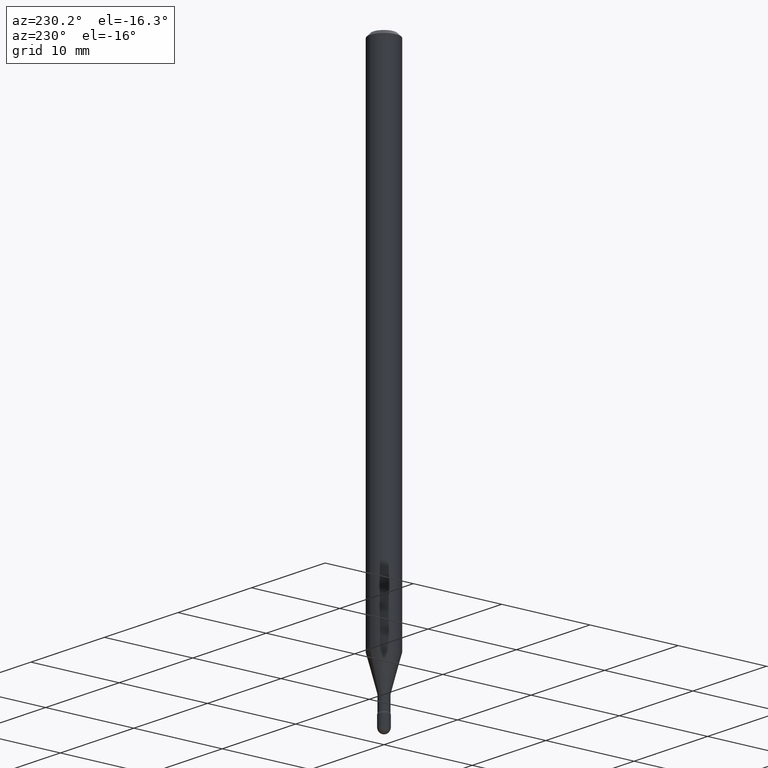
[diagram: clean part render]
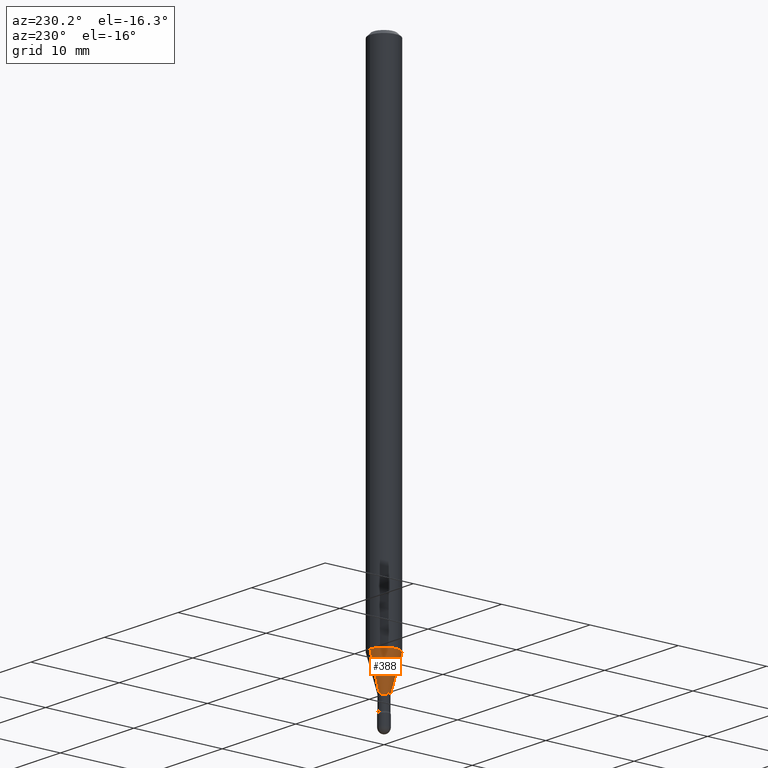
[diagram: same view with one face highlighted and labeled with its STEP entity id]
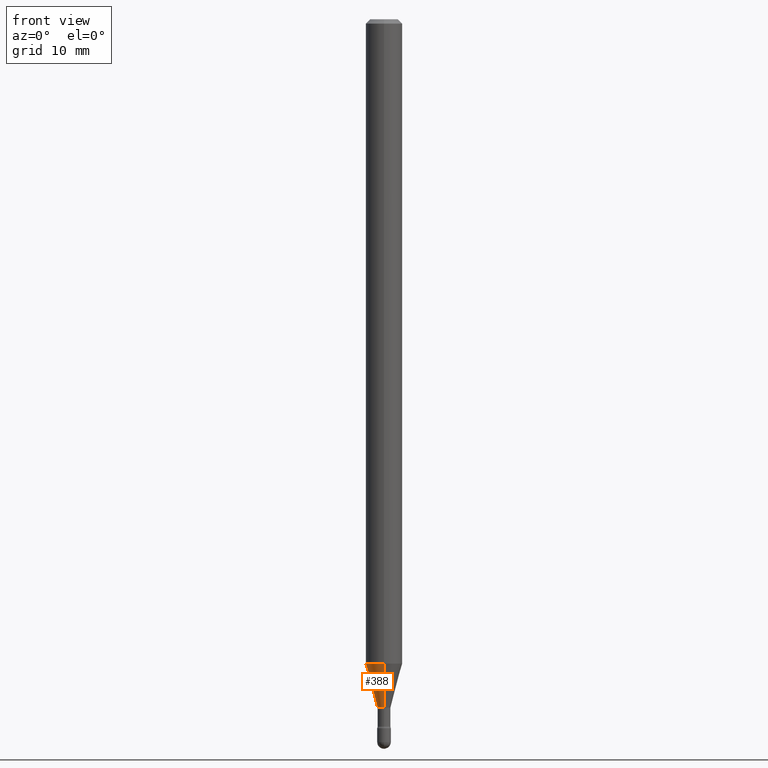
[diagram: same view with one face highlighted and labeled with its STEP entity id]
A machine part, auxiliary view. The second image highlights one B-rep face of the part: STEP entity #388.
A second angle (front view) of the same face is appended — the face is thin or edge-on in the first view.
In plain terms, the highlighted conical surface has half-angle 15 deg.
Its self-contained STEP definition (entity closure, byte-faithful):
#4 = DIRECTION ( 'NONE',  ( -2.445458922763215307E-29, 3.491495492465866441E-15, 1.000000000000000000 ) ) ;
#13 = CARTESIAN_POINT ( 'NONE',  ( 5.400123890116396966E-29, -7.710008148406855528E-15, -2.208225147374217823 ) ) ;
#18 = VECTOR ( 'NONE', #365, 39.37007874015748143 ) ;
#29 = VERTEX_POINT ( 'NONE', #152 ) ;
#57 = LINE ( 'NONE', #96, #18 ) ;
#87 = ORIENTED_EDGE ( 'NONE', *, *, #175, .F. ) ;
#96 = CARTESIAN_POINT ( 'NONE',  ( 1.606616180941393285E-16, 0.02261111260565575043, -2.357092501787273253 ) ) ;
#123 = EDGE_CURVE ( 'NONE', #460, #29, #306, .T. ) ;
#132 = DIRECTION ( 'NONE',  ( -2.445458922763215307E-29, 3.491495492465866441E-15, 1.000000000000000000 ) ) ;
#151 = EDGE_CURVE ( 'NONE', #165, #413, #386, .T. ) ;
#152 = CARTESIAN_POINT ( 'NONE',  ( -1.578925554262553659E-16, -0.02261111260567220949, -2.357092501787273253 ) ) ;
#165 = VERTEX_POINT ( 'NONE', #265 ) ;
#170 = FACE_OUTER_BOUND ( 'NONE', #210, .T. ) ;
#172 = DIRECTION ( 'NONE',  ( -6.982962677686265922E-15, -1.000000000000000000, 0.000000000000000000 ) ) ;
#174 = DIRECTION ( 'NONE',  ( -6.982962677686265922E-15, -1.000000000000000000, 0.000000000000000000 ) ) ;
#175 = EDGE_CURVE ( 'NONE', #460, #165, #57, .T. ) ;
#181 = CARTESIAN_POINT ( 'NONE',  ( -4.364351673553376817E-16, -0.06250000000000772993, -2.208225147374217379 ) ) ;
#193 = AXIS2_PLACEMENT_3D ( 'NONE', #214, #445, #172 ) ;
#210 = EDGE_LOOP ( 'NONE', ( #87, #545, #519, #240 ) ) ;
#213 = CARTESIAN_POINT ( 'NONE',  ( 5.764172890273956731E-29, -8.229777845315356399E-15, -2.357092501787273253 ) ) ;
#214 = CARTESIAN_POINT ( 'NONE',  ( 5.764172890273956731E-29, -8.229777845315356399E-15, -2.357092501787273253 ) ) ;
#229 = AXIS2_PLACEMENT_3D ( 'NONE', #13, #132, #480 ) ;
#240 = ORIENTED_EDGE ( 'NONE', *, *, #151, .F. ) ;
#254 = AXIS2_PLACEMENT_3D ( 'NONE', #213, #4, #174 ) ;
#265 = CARTESIAN_POINT ( 'NONE',  ( 4.440892098501163573E-16, 0.06249999999999226313, -2.208225147374217823 ) ) ;
#296 = VECTOR ( 'NONE', #439, 39.37007874015748854 ) ;
#306 = CIRCLE ( 'NONE', #193, 0.02261111260566397996 ) ;
#332 = EDGE_CURVE ( 'NONE', #29, #413, #341, .T. ) ;
#341 = LINE ( 'NONE', #512, #296 ) ;
#365 = DIRECTION ( 'NONE',  ( 1.839019923739596371E-15, 0.2588190451025244032, 0.9659258262890673130 ) ) ;
#386 = CIRCLE ( 'NONE', #229, 0.06250000000000000000 ) ;
#388 = ADVANCED_FACE ( 'NONE', ( #170 ), #421, .T. ) ;
#413 = VERTEX_POINT ( 'NONE', #181 ) ;
#421 = CONICAL_SURFACE ( 'NONE', #254, 0.02261111260566397996, 0.2617993877991496854 ) ;
#439 = DIRECTION ( 'NONE',  ( -1.807323732225326195E-15, -0.2588190451025176309, 0.9659258262890690894 ) ) ;
#445 = DIRECTION ( 'NONE',  ( -2.445458922763215307E-29, 3.491495492465866441E-15, 1.000000000000000000 ) ) ;
#460 = VERTEX_POINT ( 'NONE', #488 ) ;
#480 = DIRECTION ( 'NONE',  ( -6.982962677686265922E-15, -1.000000000000000000, 4.370956789862821150E-15 ) ) ;
#488 = CARTESIAN_POINT ( 'NONE',  ( 3.023754139721279785E-16, 0.02261111260565575043, -2.357092501787273253 ) ) ;
#512 = CARTESIAN_POINT ( 'NONE',  ( -1.578925554262553659E-16, -0.02261111260567220949, -2.357092501787273253 ) ) ;
#519 = ORIENTED_EDGE ( 'NONE', *, *, #332, .T. ) ;
#545 = ORIENTED_EDGE ( 'NONE', *, *, #123, .T. ) ;